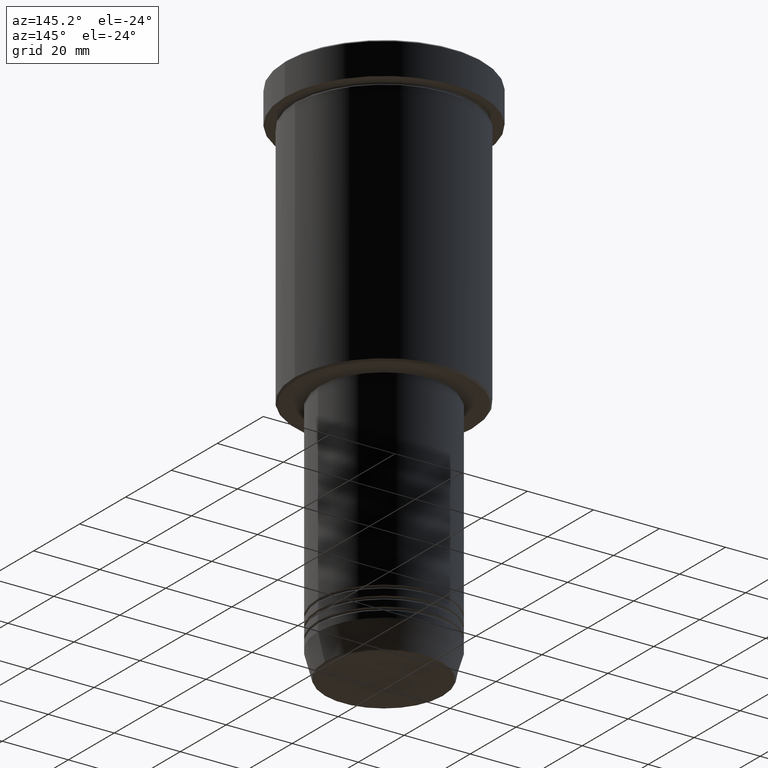
[diagram: clean part render]
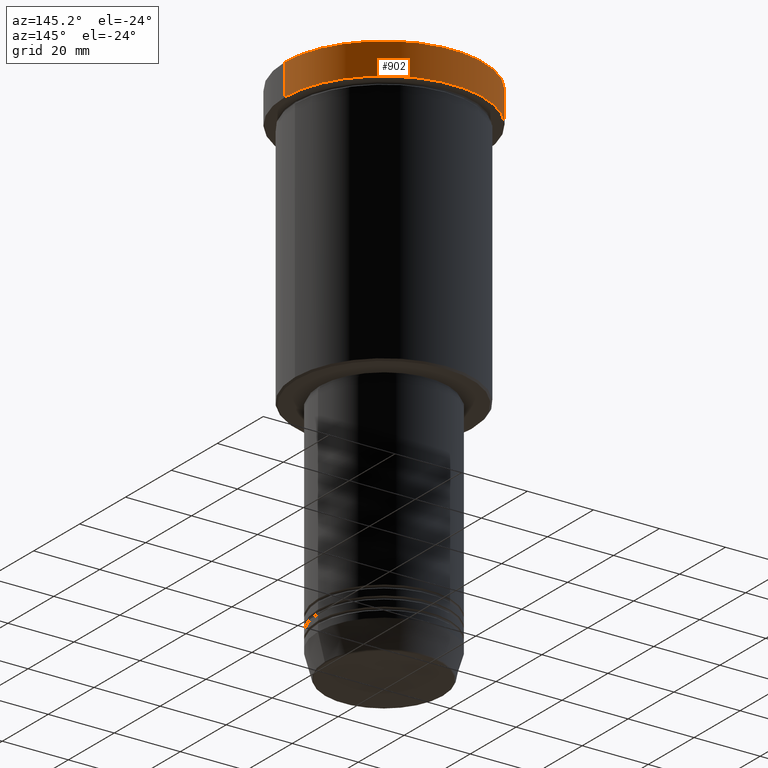
[diagram: same view with one face highlighted and labeled with its STEP entity id]
A machine part, auxiliary view. The second image highlights one B-rep face of the part: STEP entity #902.
In plain terms, the highlighted cylindrical surface (partial cylindrical patch) has radius 30 mm, axis along (-0, -0, 1).
Its self-contained STEP definition (entity closure, byte-faithful):
#20 = CARTESIAN_POINT ( 'NONE',  ( -30.00000000000000000, 3.673940397442059178E-15, 0.000000000000000000 ) ) ;
#50 = VECTOR ( 'NONE', #485, 1000.000000000000000 ) ;
#98 = DIRECTION ( 'NONE',  ( 1.000000000000000000, 0.000000000000000000, 0.000000000000000000 ) ) ;
#163 = FACE_OUTER_BOUND ( 'NONE', #856, .T. ) ;
#189 = AXIS2_PLACEMENT_3D ( 'NONE', #888, #1022, #98 ) ;
#210 = VECTOR ( 'NONE', #379, 1000.000000000000000 ) ;
#233 = CARTESIAN_POINT ( 'NONE',  ( -30.00000000000000000, 3.673940397442059178E-15, -0.5000000000000073275 ) ) ;
#322 = VERTEX_POINT ( 'NONE', #947 ) ;
#335 = EDGE_CURVE ( 'NONE', #322, #1058, #421, .T. ) ;
#367 = ORIENTED_EDGE ( 'NONE', *, *, #335, .T. ) ;
#378 = AXIS2_PLACEMENT_3D ( 'NONE', #571, #608, #791 ) ;
#379 = DIRECTION ( 'NONE',  ( -0.000000000000000000, -0.000000000000000000, 1.000000000000000000 ) ) ;
#391 = DIRECTION ( 'NONE',  ( 1.000000000000000000, 0.000000000000000000, 0.000000000000000000 ) ) ;
#421 = CIRCLE ( 'NONE', #1107, 30.00000000000000000 ) ;
#444 = CIRCLE ( 'NONE', #378, 30.00000000000000000 ) ;
#456 = ORIENTED_EDGE ( 'NONE', *, *, #696, .T. ) ;
#485 = DIRECTION ( 'NONE',  ( -0.000000000000000000, -0.000000000000000000, 1.000000000000000000 ) ) ;
#516 = CYLINDRICAL_SURFACE ( 'NONE', #189, 30.00000000000000000 ) ;
#571 = CARTESIAN_POINT ( 'NONE',  ( 0.000000000000000000, 0.000000000000000000, -0.5000000000000073275 ) ) ;
#590 = CARTESIAN_POINT ( 'NONE',  ( -30.00000000000000000, 3.673940397442059178E-15, -9.999999999999992895 ) ) ;
#595 = EDGE_CURVE ( 'NONE', #322, #984, #1045, .T. ) ;
#597 = EDGE_CURVE ( 'NONE', #1058, #835, #861, .T. ) ;
#608 = DIRECTION ( 'NONE',  ( 0.000000000000000000, 0.000000000000000000, -1.000000000000000000 ) ) ;
#696 = EDGE_CURVE ( 'NONE', #835, #984, #444, .T. ) ;
#729 = CARTESIAN_POINT ( 'NONE',  ( 30.00000000000000000, 0.000000000000000000, -0.5000000000000073275 ) ) ;
#742 = ORIENTED_EDGE ( 'NONE', *, *, #595, .F. ) ;
#791 = DIRECTION ( 'NONE',  ( 1.000000000000000000, 0.000000000000000000, 0.000000000000000000 ) ) ;
#835 = VERTEX_POINT ( 'NONE', #233 ) ;
#839 = CARTESIAN_POINT ( 'NONE',  ( 30.00000000000000000, 0.000000000000000000, 0.000000000000000000 ) ) ;
#841 = CARTESIAN_POINT ( 'NONE',  ( 0.000000000000000000, 0.000000000000000000, -9.999999999999992895 ) ) ;
#856 = EDGE_LOOP ( 'NONE', ( #367, #1156, #456, #742 ) ) ;
#861 = LINE ( 'NONE', #20, #210 ) ;
#888 = CARTESIAN_POINT ( 'NONE',  ( 0.000000000000000000, 0.000000000000000000, 0.000000000000000000 ) ) ;
#902 = ADVANCED_FACE ( 'NONE', ( #163 ), #516, .T. ) ;
#947 = CARTESIAN_POINT ( 'NONE',  ( 30.00000000000000000, 0.000000000000000000, -9.999999999999992895 ) ) ;
#984 = VERTEX_POINT ( 'NONE', #729 ) ;
#1022 = DIRECTION ( 'NONE',  ( -0.000000000000000000, -0.000000000000000000, 1.000000000000000000 ) ) ;
#1045 = LINE ( 'NONE', #839, #50 ) ;
#1058 = VERTEX_POINT ( 'NONE', #590 ) ;
#1107 = AXIS2_PLACEMENT_3D ( 'NONE', #841, #1130, #391 ) ;
#1130 = DIRECTION ( 'NONE',  ( -0.000000000000000000, -0.000000000000000000, 1.000000000000000000 ) ) ;
#1156 = ORIENTED_EDGE ( 'NONE', *, *, #597, .T. ) ;